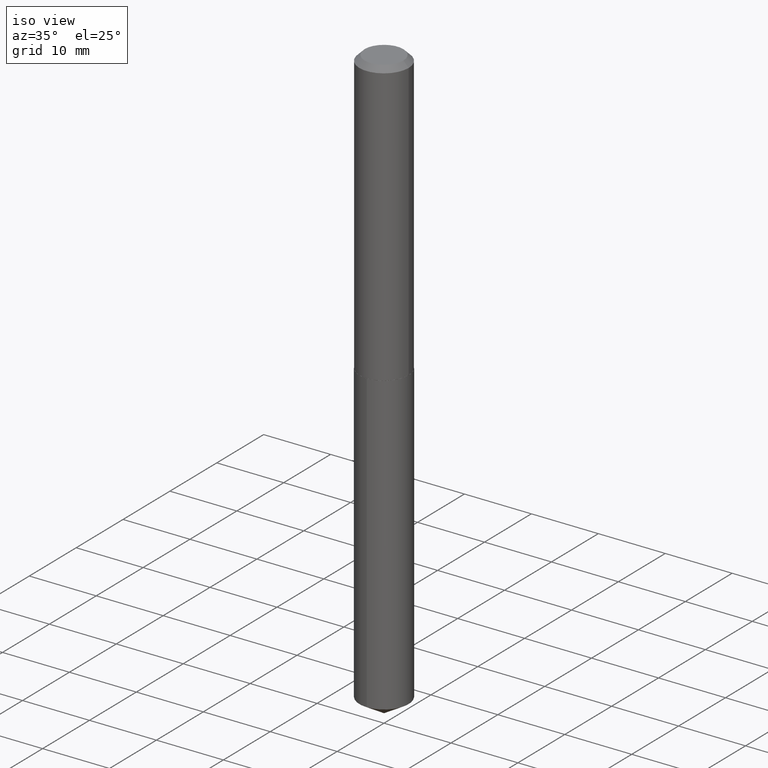
[diagram: clean part render]
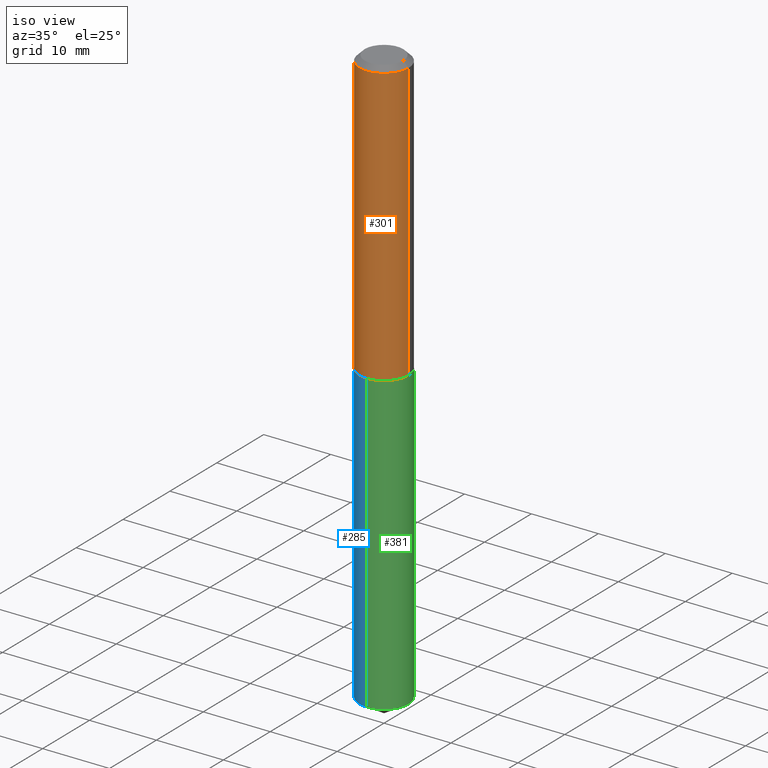
[diagram: same view with three faces highlighted in distinct colors, each labeled with its STEP entity id]
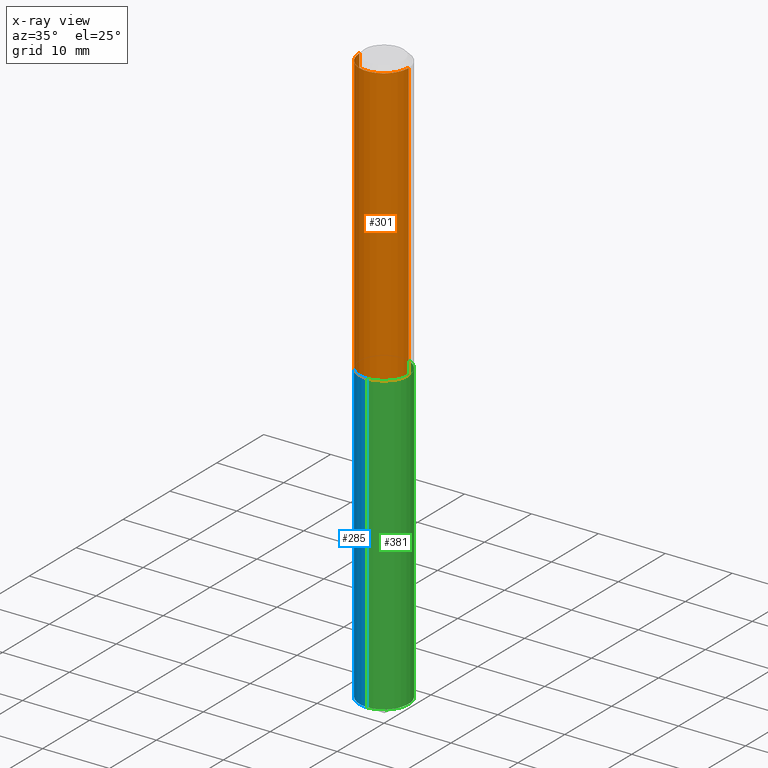
[diagram: x-ray of the same camera — body ghosted, the three highlighted faces saturated]
A machine part, iso view with three faces highlighted in distinct colors.
The next image is the same camera in x-ray (body ghosted, the three faces saturated) — at least one of them is partly hidden behind the body in this view.
Their STEP definitions:

[orange] entity #301 — the highlighted cylindrical surface (edge-blend (fillet) strip) has radius 3.683 mm, axis along (-0, 0, 1).
#28 = EDGE_CURVE ( 'NONE', #221, #129, #307, .T. ) ;
#35 = ORIENTED_EDGE ( 'NONE', *, *, #389, .T. ) ;
#49 = CARTESIAN_POINT ( 'NONE',  ( 0.000000000000000000, 0.000000000000000000, 0.000000000000000000 ) ) ;
#53 = DIRECTION ( 'NONE',  ( -2.445468806185136597E-29, 3.491481338843145583E-15, 1.000000000000000000 ) ) ;
#54 = CARTESIAN_POINT ( 'NONE',  ( 0.1450000000000001843, -6.824100276768925663E-15, -1.664499999999999869 ) ) ;
#87 = DIRECTION ( 'NONE',  ( 1.000000000000000000, -6.982962677686270655E-15, 0.000000000000000000 ) ) ;
#95 = EDGE_CURVE ( 'NONE', #188, #245, #320, .T. ) ;
#104 = CARTESIAN_POINT ( 'NONE',  ( 0.1450000000000001010, -1.012529588264509344E-15, 7.070456324904111664E-30 ) ) ;
#119 = ORIENTED_EDGE ( 'NONE', *, *, #28, .T. ) ;
#127 = AXIS2_PLACEMENT_3D ( 'NONE', #49, #53, #262 ) ;
#129 = VERTEX_POINT ( 'NONE', #172 ) ;
#142 = CIRCLE ( 'NONE', #344, 0.1449999999999999900 ) ;
#156 = AXIS2_PLACEMENT_3D ( 'NONE', #357, #272, #87 ) ;
#158 = EDGE_CURVE ( 'NONE', #245, #129, #142, .T. ) ;
#161 = ORIENTED_EDGE ( 'NONE', *, *, #158, .F. ) ;
#169 = CARTESIAN_POINT ( 'NONE',  ( -0.1450000000000001843, -4.781283721652268754E-15, -1.664499999999999869 ) ) ;
#172 = CARTESIAN_POINT ( 'NONE',  ( 0.1449999999999999900, -1.121638380103357655E-15, -0.03125000000000021511 ) ) ;
#188 = VERTEX_POINT ( 'NONE', #169 ) ;
#204 = VECTOR ( 'NONE', #305, 39.37007874015748143 ) ;
#211 = CYLINDRICAL_SURFACE ( 'NONE', #127, 0.1450000000000001010 ) ;
#221 = VERTEX_POINT ( 'NONE', #54 ) ;
#239 = DIRECTION ( 'NONE',  ( -2.445468806185136597E-29, 3.491481338843145583E-15, 1.000000000000000000 ) ) ;
#242 = CIRCLE ( 'NONE', #156, 0.1450000000000001843 ) ;
#245 = VERTEX_POINT ( 'NONE', #380 ) ;
#262 = DIRECTION ( 'NONE',  ( 1.000000000000000000, -6.982962677686266711E-15, 4.876176775795935793E-29 ) ) ;
#272 = DIRECTION ( 'NONE',  ( -2.445468806185136597E-29, 3.491481338843145583E-15, 1.000000000000000000 ) ) ;
#283 = CARTESIAN_POINT ( 'NONE',  ( 7.642090019328604414E-31, -1.091087918388490513E-16, -0.03125000000000021511 ) ) ;
#299 = ORIENTED_EDGE ( 'NONE', *, *, #95, .F. ) ;
#301 = ADVANCED_FACE ( 'NONE', ( #315 ), #211, .T. ) ;
#305 = DIRECTION ( 'NONE',  ( -2.445468806185136877E-29, 3.491481338843145188E-15, 1.000000000000000000 ) ) ;
#307 = LINE ( 'NONE', #104, #204 ) ;
#315 = FACE_OUTER_BOUND ( 'NONE', #331, .T. ) ;
#316 = CARTESIAN_POINT ( 'NONE',  ( -0.1450000000000001010, 1.030286966852145987E-15, -7.132455880869617335E-30 ) ) ;
#320 = LINE ( 'NONE', #316, #366 ) ;
#323 = DIRECTION ( 'NONE',  ( -2.445468806185136877E-29, 3.491481338843145188E-15, 1.000000000000000000 ) ) ;
#331 = EDGE_LOOP ( 'NONE', ( #299, #35, #119, #161 ) ) ;
#344 = AXIS2_PLACEMENT_3D ( 'NONE', #283, #239, #356 ) ;
#356 = DIRECTION ( 'NONE',  ( 1.000000000000000000, -6.982962677686266711E-15, 0.000000000000000000 ) ) ;
#357 = CARTESIAN_POINT ( 'NONE',  ( 4.070482827895159789E-29, -5.811570688504414939E-15, -1.664499999999999869 ) ) ;
#366 = VECTOR ( 'NONE', #323, 39.37007874015748143 ) ;
#380 = CARTESIAN_POINT ( 'NONE',  ( -0.1449999999999999900, -1.930052773319485835E-15, -0.03125000000000021511 ) ) ;
#389 = EDGE_CURVE ( 'NONE', #188, #221, #242, .T. ) ;

[blue] entity #285 — the highlighted cylindrical surface (edge-blend (fillet) strip) has radius 3.683 mm, axis along (-0, 0, 1).
#2 = EDGE_CURVE ( 'NONE', #160, #217, #247, .T. ) ;
#3 = VERTEX_POINT ( 'NONE', #135 ) ;
#8 = DIRECTION ( 'NONE',  ( -6.982962677686265133E-15, -1.000000000000000000, 3.768066198157604711E-15 ) ) ;
#10 = AXIS2_PLACEMENT_3D ( 'NONE', #47, #358, #59 ) ;
#16 = LINE ( 'NONE', #206, #78 ) ;
#19 = CARTESIAN_POINT ( 'NONE',  ( -1.012529588264425330E-15, -0.1450000000000119527, -3.412875210241003820 ) ) ;
#25 = CARTESIAN_POINT ( 'NONE',  ( -1.012529588264467731E-15, -0.1450000000000057909, -1.664999999999999369 ) ) ;
#47 = CARTESIAN_POINT ( 'NONE',  ( 4.071705562298252030E-29, -5.813316429173836443E-15, -1.664999999999999813 ) ) ;
#59 = DIRECTION ( 'NONE',  ( -6.982962677686265133E-15, -1.000000000000000000, 3.768066198157604711E-15 ) ) ;
#60 = AXIS2_PLACEMENT_3D ( 'NONE', #351, #382, #93 ) ;
#75 = EDGE_CURVE ( 'NONE', #160, #365, #16, .T. ) ;
#78 = VECTOR ( 'NONE', #146, 39.37007874015748143 ) ;
#93 = DIRECTION ( 'NONE',  ( -6.982962677686265133E-15, -1.000000000000000000, 3.768066198157604711E-15 ) ) ;
#99 = CIRCLE ( 'NONE', #10, 0.1449999999999999900 ) ;
#122 = DIRECTION ( 'NONE',  ( -2.445458584404726821E-29, 3.491495977014480144E-15, 1.000000000000000000 ) ) ;
#130 = EDGE_CURVE ( 'NONE', #365, #3, #99, .T. ) ;
#135 = CARTESIAN_POINT ( 'NONE',  ( -1.012529588264467731E-15, -0.1450000000000057909, -1.664999999999999369 ) ) ;
#146 = DIRECTION ( 'NONE',  ( -2.445458584404726821E-29, 3.491495977014480144E-15, 1.000000000000000000 ) ) ;
#160 = VERTEX_POINT ( 'NONE', #237 ) ;
#189 = EDGE_CURVE ( 'NONE', #217, #3, #288, .T. ) ;
#206 = CARTESIAN_POINT ( 'NONE',  ( 1.030286966852185825E-15, 0.1449999999999941891, -1.665000000000000480 ) ) ;
#217 = VERTEX_POINT ( 'NONE', #19 ) ;
#219 = EDGE_LOOP ( 'NONE', ( #359, #253, #249, #233 ) ) ;
#230 = CARTESIAN_POINT ( 'NONE',  ( 1.030286966852228818E-15, 0.1449999999999941891, -1.665000000000000480 ) ) ;
#233 = ORIENTED_EDGE ( 'NONE', *, *, #130, .F. ) ;
#237 = CARTESIAN_POINT ( 'NONE',  ( 1.030286966852228818E-15, 0.1449999999999881106, -3.412875210241005153 ) ) ;
#247 = CIRCLE ( 'NONE', #360, 0.1449999999999999900 ) ;
#249 = ORIENTED_EDGE ( 'NONE', *, *, #189, .T. ) ;
#253 = ORIENTED_EDGE ( 'NONE', *, *, #2, .T. ) ;
#285 = ADVANCED_FACE ( 'NONE', ( #378 ), #319, .T. ) ;
#288 = LINE ( 'NONE', #25, #326 ) ;
#308 = DIRECTION ( 'NONE',  ( -2.445458584404726821E-29, 3.491495977014480144E-15, 1.000000000000000000 ) ) ;
#319 = CYLINDRICAL_SURFACE ( 'NONE', #60, 0.1449999999999999900 ) ;
#326 = VECTOR ( 'NONE', #122, 39.37007874015748143 ) ;
#338 = CARTESIAN_POINT ( 'NONE',  ( 8.346061999650333898E-29, -1.191601569405364291E-14, -3.412875210241004709 ) ) ;
#351 = CARTESIAN_POINT ( 'NONE',  ( 4.071705562298252030E-29, -5.813316429173836443E-15, -1.664999999999999813 ) ) ;
#358 = DIRECTION ( 'NONE',  ( -2.445458584404726821E-29, 3.491495977014480144E-15, 1.000000000000000000 ) ) ;
#359 = ORIENTED_EDGE ( 'NONE', *, *, #75, .F. ) ;
#360 = AXIS2_PLACEMENT_3D ( 'NONE', #338, #308, #8 ) ;
#365 = VERTEX_POINT ( 'NONE', #230 ) ;
#378 = FACE_OUTER_BOUND ( 'NONE', #219, .T. ) ;
#382 = DIRECTION ( 'NONE',  ( -2.445458584404726821E-29, 3.491495977014480144E-15, 1.000000000000000000 ) ) ;

[green] entity #381 — the highlighted cylindrical surface (edge-blend (fillet) strip) has radius 3.683 mm, axis along (-0, 0, 1).
#3 = VERTEX_POINT ( 'NONE', #135 ) ;
#15 = AXIS2_PLACEMENT_3D ( 'NONE', #56, #269, #115 ) ;
#16 = LINE ( 'NONE', #206, #78 ) ;
#19 = CARTESIAN_POINT ( 'NONE',  ( -1.012529588264425330E-15, -0.1450000000000119527, -3.412875210241003820 ) ) ;
#25 = CARTESIAN_POINT ( 'NONE',  ( -1.012529588264467731E-15, -0.1450000000000057909, -1.664999999999999369 ) ) ;
#46 = CARTESIAN_POINT ( 'NONE',  ( 8.346061999650333898E-29, -1.191601569405364291E-14, -3.412875210241004709 ) ) ;
#50 = AXIS2_PLACEMENT_3D ( 'NONE', #46, #58, #379 ) ;
#55 = DIRECTION ( 'NONE',  ( -2.445458584404726821E-29, 3.491495977014480144E-15, 1.000000000000000000 ) ) ;
#56 = CARTESIAN_POINT ( 'NONE',  ( 4.071705562298252030E-29, -5.813316429173836443E-15, -1.664999999999999813 ) ) ;
#58 = DIRECTION ( 'NONE',  ( -2.445458584404726821E-29, 3.491495977014480144E-15, 1.000000000000000000 ) ) ;
#70 = ORIENTED_EDGE ( 'NONE', *, *, #121, .F. ) ;
#75 = EDGE_CURVE ( 'NONE', #160, #365, #16, .T. ) ;
#78 = VECTOR ( 'NONE', #146, 39.37007874015748143 ) ;
#80 = CIRCLE ( 'NONE', #50, 0.1449999999999999900 ) ;
#102 = ORIENTED_EDGE ( 'NONE', *, *, #189, .F. ) ;
#115 = DIRECTION ( 'NONE',  ( -6.982962677686265133E-15, -1.000000000000000000, 3.768066198157604711E-15 ) ) ;
#117 = CARTESIAN_POINT ( 'NONE',  ( 4.071705562298252030E-29, -5.813316429173836443E-15, -1.664999999999999813 ) ) ;
#121 = EDGE_CURVE ( 'NONE', #3, #365, #132, .T. ) ;
#122 = DIRECTION ( 'NONE',  ( -2.445458584404726821E-29, 3.491495977014480144E-15, 1.000000000000000000 ) ) ;
#132 = CIRCLE ( 'NONE', #15, 0.1449999999999999900 ) ;
#135 = CARTESIAN_POINT ( 'NONE',  ( -1.012529588264467731E-15, -0.1450000000000057909, -1.664999999999999369 ) ) ;
#137 = EDGE_LOOP ( 'NONE', ( #164, #329, #70, #102 ) ) ;
#146 = DIRECTION ( 'NONE',  ( -2.445458584404726821E-29, 3.491495977014480144E-15, 1.000000000000000000 ) ) ;
#153 = DIRECTION ( 'NONE',  ( -6.982962677686265133E-15, -1.000000000000000000, 3.768066198157604711E-15 ) ) ;
#160 = VERTEX_POINT ( 'NONE', #237 ) ;
#164 = ORIENTED_EDGE ( 'NONE', *, *, #306, .T. ) ;
#189 = EDGE_CURVE ( 'NONE', #217, #3, #288, .T. ) ;
#206 = CARTESIAN_POINT ( 'NONE',  ( 1.030286966852185825E-15, 0.1449999999999941891, -1.665000000000000480 ) ) ;
#217 = VERTEX_POINT ( 'NONE', #19 ) ;
#230 = CARTESIAN_POINT ( 'NONE',  ( 1.030286966852228818E-15, 0.1449999999999941891, -1.665000000000000480 ) ) ;
#237 = CARTESIAN_POINT ( 'NONE',  ( 1.030286966852228818E-15, 0.1449999999999881106, -3.412875210241005153 ) ) ;
#269 = DIRECTION ( 'NONE',  ( -2.445458584404726821E-29, 3.491495977014480144E-15, 1.000000000000000000 ) ) ;
#288 = LINE ( 'NONE', #25, #326 ) ;
#290 = CYLINDRICAL_SURFACE ( 'NONE', #318, 0.1449999999999999900 ) ;
#306 = EDGE_CURVE ( 'NONE', #217, #160, #80, .T. ) ;
#318 = AXIS2_PLACEMENT_3D ( 'NONE', #117, #55, #153 ) ;
#326 = VECTOR ( 'NONE', #122, 39.37007874015748143 ) ;
#329 = ORIENTED_EDGE ( 'NONE', *, *, #75, .T. ) ;
#349 = FACE_OUTER_BOUND ( 'NONE', #137, .T. ) ;
#365 = VERTEX_POINT ( 'NONE', #230 ) ;
#379 = DIRECTION ( 'NONE',  ( -6.982962677686265133E-15, -1.000000000000000000, 3.768066198157604711E-15 ) ) ;
#381 = ADVANCED_FACE ( 'NONE', ( #349 ), #290, .T. ) ;